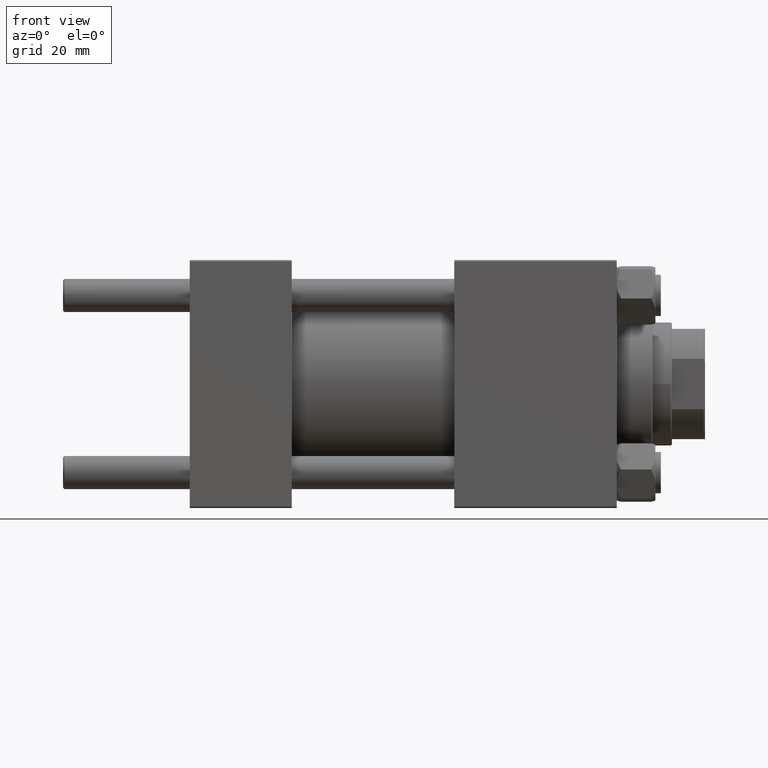
[diagram: clean part render]
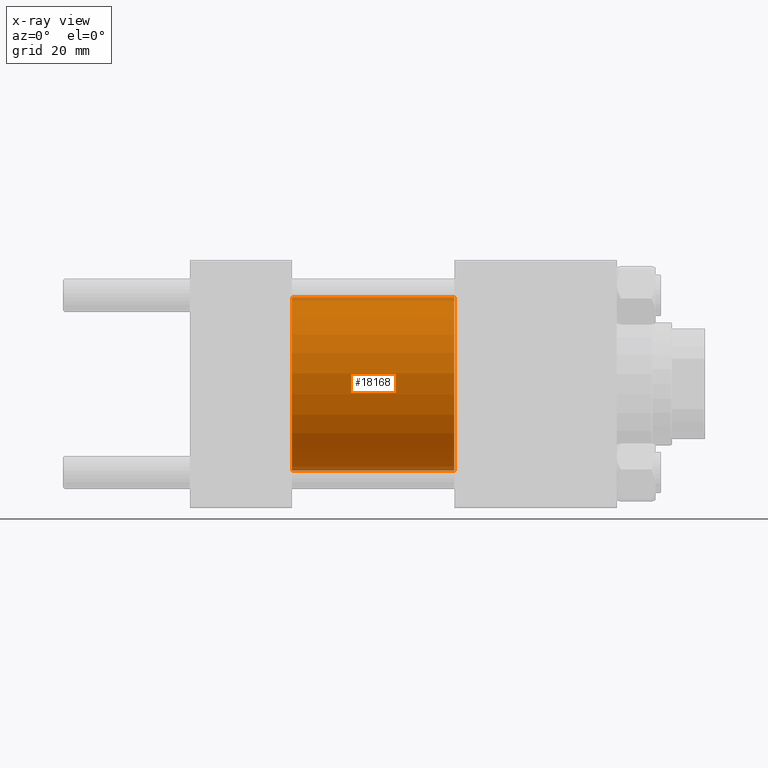
[diagram: x-ray — body ghosted, one internal face saturated and labeled with its STEP entity id]
A machine part, front view, then the same camera in x-ray: the body is ghosted and one INTERNAL B-rep face — a face not visible from any outside direction — is saturated and labeled: STEP entity #18168.
In plain terms, the highlighted cylindrical surface (partial cylindrical patch) has radius 31.5 mm, axis along (-1, -0, -0).
Its self-contained STEP definition (entity closure, byte-faithful):
#598 = DIRECTION ( 'NONE',  ( 0.000000000000000000, 0.000000000000000000, 1.000000000000000000 ) ) ;
#1018 = DIRECTION ( 'NONE',  ( 0.000000000000000000, 0.000000000000000000, -1.000000000000000000 ) ) ;
#3835 = CARTESIAN_POINT ( 'NONE',  ( 37.00000000000000000, 3.857637417314162689E-15, -31.50000000000000000 ) ) ;
#4381 = DIRECTION ( 'NONE',  ( -1.000000000000000000, -0.000000000000000000, -0.000000000000000000 ) ) ;
#4529 = AXIS2_PLACEMENT_3D ( 'NONE', #43046, #23641, #8275 ) ;
#5339 = VECTOR ( 'NONE', #24460, 1000.000000000000000 ) ;
#5658 = ORIENTED_EDGE ( 'NONE', *, *, #13174, .T. ) ;
#8180 = FACE_OUTER_BOUND ( 'NONE', #28179, .T. ) ;
#8275 = DIRECTION ( 'NONE',  ( 0.000000000000000000, 0.000000000000000000, -1.000000000000000000 ) ) ;
#8599 = CARTESIAN_POINT ( 'NONE',  ( 96.00000000000000000, 0.000000000000000000, 0.000000000000000000 ) ) ;
#12333 = VERTEX_POINT ( 'NONE', #3835 ) ;
#12668 = VECTOR ( 'NONE', #17808, 1000.000000000000000 ) ;
#13174 = EDGE_CURVE ( 'NONE', #36202, #31360, #42560, .T. ) ;
#14041 = CARTESIAN_POINT ( 'NONE',  ( 96.00000000000000000, 0.000000000000000000, 31.50000000000000000 ) ) ;
#14557 = AXIS2_PLACEMENT_3D ( 'NONE', #39410, #4381, #598 ) ;
#17135 = DIRECTION ( 'NONE',  ( 1.000000000000000000, 0.000000000000000000, 0.000000000000000000 ) ) ;
#17808 = DIRECTION ( 'NONE',  ( -1.000000000000000000, -0.000000000000000000, -0.000000000000000000 ) ) ;
#18168 = ADVANCED_FACE ( 'NONE', ( #8180 ), #38926, .F. ) ;
#18206 = CIRCLE ( 'NONE', #4529, 31.50000000000000000 ) ;
#18558 = LINE ( 'NONE', #14041, #12668 ) ;
#19625 = VERTEX_POINT ( 'NONE', #27171 ) ;
#21726 = ORIENTED_EDGE ( 'NONE', *, *, #37550, .F. ) ;
#23641 = DIRECTION ( 'NONE',  ( 1.000000000000000000, 0.000000000000000000, 0.000000000000000000 ) ) ;
#24460 = DIRECTION ( 'NONE',  ( -1.000000000000000000, -0.000000000000000000, -0.000000000000000000 ) ) ;
#26106 = ORIENTED_EDGE ( 'NONE', *, *, #46858, .F. ) ;
#27171 = CARTESIAN_POINT ( 'NONE',  ( 37.00000000000000000, 0.000000000000000000, 31.50000000000000000 ) ) ;
#27260 = AXIS2_PLACEMENT_3D ( 'NONE', #8599, #17135, #1018 ) ;
#28179 = EDGE_LOOP ( 'NONE', ( #5658, #43186, #21726, #26106 ) ) ;
#28481 = LINE ( 'NONE', #35793, #5339 ) ;
#31360 = VERTEX_POINT ( 'NONE', #37724 ) ;
#35793 = CARTESIAN_POINT ( 'NONE',  ( 96.00000000000000000, 3.857637417314162689E-15, -31.50000000000000000 ) ) ;
#36202 = VERTEX_POINT ( 'NONE', #41792 ) ;
#37550 = EDGE_CURVE ( 'NONE', #19625, #12333, #18206, .T. ) ;
#37724 = CARTESIAN_POINT ( 'NONE',  ( 96.00000000000000000, 3.857637417314162689E-15, -31.50000000000000000 ) ) ;
#38926 = CYLINDRICAL_SURFACE ( 'NONE', #14557, 31.50000000000000000 ) ;
#39410 = CARTESIAN_POINT ( 'NONE',  ( 96.00000000000000000, 0.000000000000000000, 0.000000000000000000 ) ) ;
#41792 = CARTESIAN_POINT ( 'NONE',  ( 96.00000000000000000, 0.000000000000000000, 31.50000000000000000 ) ) ;
#42560 = CIRCLE ( 'NONE', #27260, 31.50000000000000000 ) ;
#43046 = CARTESIAN_POINT ( 'NONE',  ( 37.00000000000000000, 0.000000000000000000, 0.000000000000000000 ) ) ;
#43186 = ORIENTED_EDGE ( 'NONE', *, *, #44987, .T. ) ;
#44987 = EDGE_CURVE ( 'NONE', #31360, #12333, #28481, .T. ) ;
#46858 = EDGE_CURVE ( 'NONE', #36202, #19625, #18558, .T. ) ;